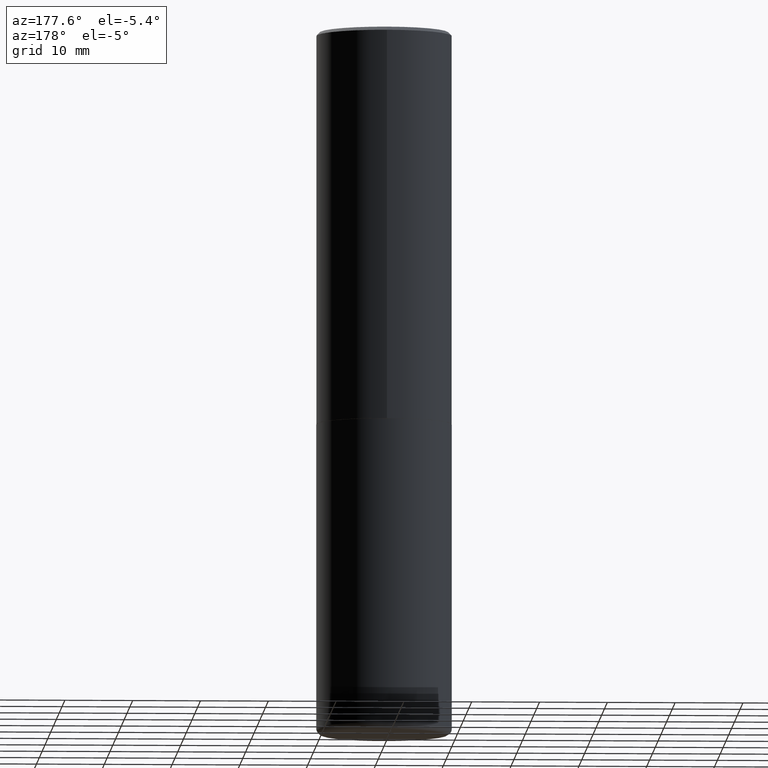
[diagram: clean part render]
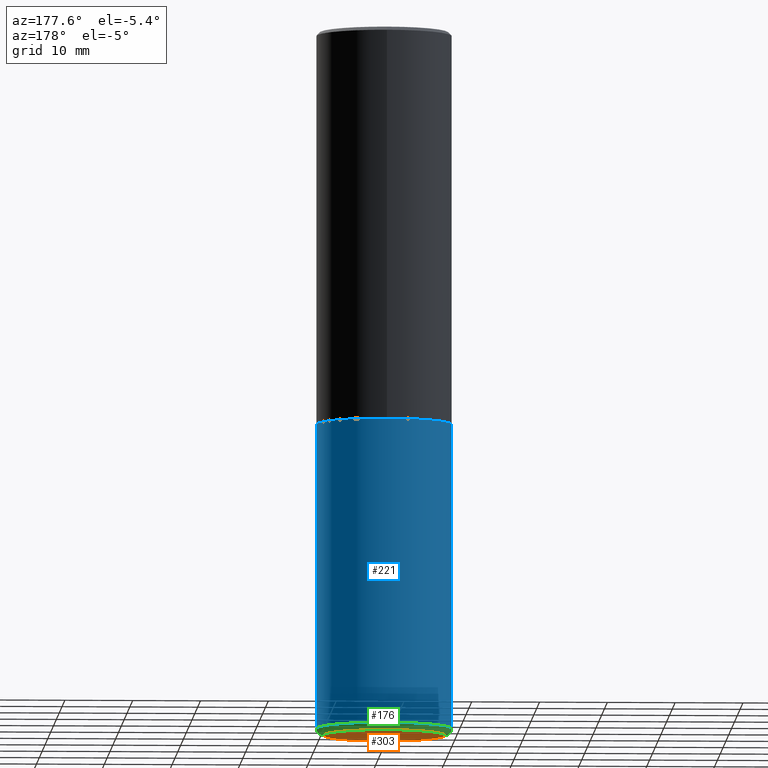
[diagram: same view with three faces highlighted in distinct colors, each labeled with its STEP entity id]
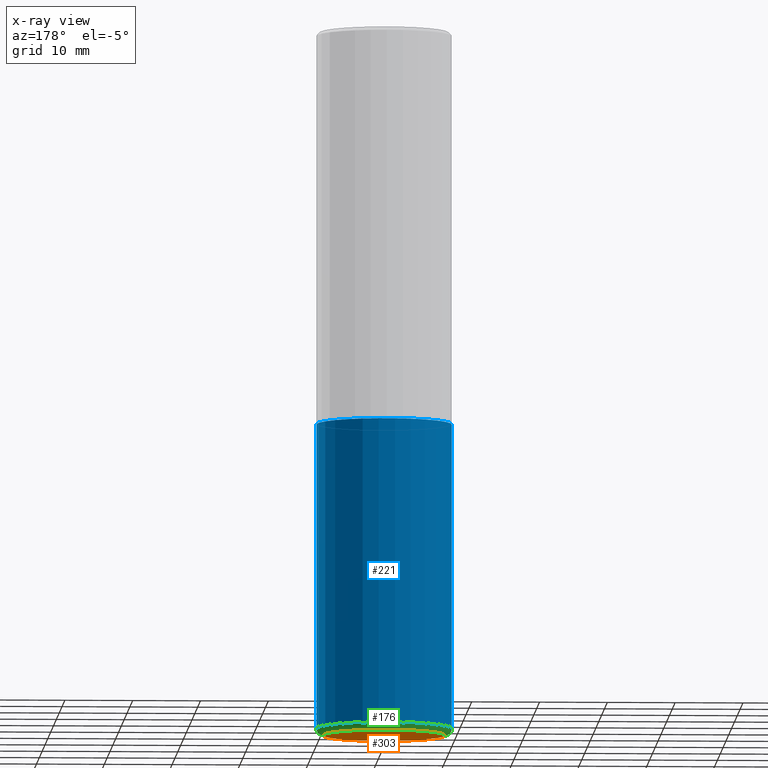
[diagram: x-ray of the same camera — body ghosted, the three highlighted faces saturated]
A machine part, auxiliary view with three faces highlighted in distinct colors.
The next image is the same camera in x-ray (body ghosted, the three faces saturated) — at least one of them is partly hidden behind the body in this view.
Their STEP definitions:

[orange] entity #303 — the highlighted planar face has unit normal (0, -0, -1).
#25 = EDGE_LOOP ( 'NONE', ( #255, #166 ) ) ;
#48 = DIRECTION ( 'NONE',  ( 2.438088387897960049E-29, -3.491481338843145188E-15, -1.000000000000000000 ) ) ;
#55 = VERTEX_POINT ( 'NONE', #204 ) ;
#84 = DIRECTION ( 'NONE',  ( -2.445468806185136597E-29, 3.491481338843145583E-15, 1.000000000000000000 ) ) ;
#100 = EDGE_CURVE ( 'NONE', #55, #123, #128, .T. ) ;
#108 = AXIS2_PLACEMENT_3D ( 'NONE', #403, #48, #222 ) ;
#110 = EDGE_CURVE ( 'NONE', #123, #55, #291, .T. ) ;
#114 = DIRECTION ( 'NONE',  ( -2.445468806185136597E-29, 3.491481338843145583E-15, 1.000000000000000000 ) ) ;
#123 = VERTEX_POINT ( 'NONE', #242 ) ;
#128 = CIRCLE ( 'NONE', #326, 0.3543000000000001148 ) ;
#166 = ORIENTED_EDGE ( 'NONE', *, *, #100, .F. ) ;
#204 = CARTESIAN_POINT ( 'NONE',  ( -0.3543000000000001148, -1.156965832777527483E-14, -4.094500000000000028 ) ) ;
#210 = CARTESIAN_POINT ( 'NONE',  ( 1.001297202692504215E-28, -1.429587034189326149E-14, -4.094500000000000028 ) ) ;
#216 = DIRECTION ( 'NONE',  ( 1.000000000000000000, -6.982962677686264344E-15, 0.000000000000000000 ) ) ;
#222 = DIRECTION ( 'NONE',  ( -1.000000000000000000, 6.982962677686265922E-15, -4.876176775795935793E-29 ) ) ;
#242 = CARTESIAN_POINT ( 'NONE',  ( 0.3543000000000001148, -1.676993401859750628E-14, -4.094500000000000028 ) ) ;
#245 = DIRECTION ( 'NONE',  ( 1.000000000000000000, -6.982962677686264344E-15, 0.000000000000000000 ) ) ;
#255 = ORIENTED_EDGE ( 'NONE', *, *, #110, .F. ) ;
#289 = FACE_OUTER_BOUND ( 'NONE', #25, .T. ) ;
#291 = CIRCLE ( 'NONE', #332, 0.3543000000000001148 ) ;
#303 = ADVANCED_FACE ( 'NONE', ( #289 ), #335, .T. ) ;
#326 = AXIS2_PLACEMENT_3D ( 'NONE', #414, #84, #216 ) ;
#332 = AXIS2_PLACEMENT_3D ( 'NONE', #210, #114, #245 ) ;
#335 = PLANE ( 'NONE',  #108 ) ;
#403 = CARTESIAN_POINT ( 'NONE',  ( 1.001297202692504215E-28, -1.429587034189326149E-14, -4.094500000000000028 ) ) ;
#414 = CARTESIAN_POINT ( 'NONE',  ( 1.001297202692504215E-28, -1.429587034189326149E-14, -4.094500000000000028 ) ) ;

[blue] entity #221 — the highlighted cylindrical surface (partial cylindrical patch) has radius 10 mm, axis along (-0, 0, 1).
#7 = AXIS2_PLACEMENT_3D ( 'NONE', #329, #40, #241 ) ;
#40 = DIRECTION ( 'NONE',  ( -2.445468806185136597E-29, 3.491481338843145583E-15, 1.000000000000000000 ) ) ;
#43 = CARTESIAN_POINT ( 'NONE',  ( -0.3937000000000001054, -1.136089922645532513E-14, -4.055100000000000371 ) ) ;
#77 = CYLINDRICAL_SURFACE ( 'NONE', #7, 0.3937000000000000499 ) ;
#79 = VECTOR ( 'NONE', #334, 39.37007874015748143 ) ;
#127 = ORIENTED_EDGE ( 'NONE', *, *, #234, .F. ) ;
#129 = AXIS2_PLACEMENT_3D ( 'NONE', #173, #363, #368 ) ;
#135 = VECTOR ( 'NONE', #142, 39.37007874015748143 ) ;
#140 = ORIENTED_EDGE ( 'NONE', *, *, #254, .T. ) ;
#142 = DIRECTION ( 'NONE',  ( -2.445468806185136877E-29, 3.491481338843145188E-15, 1.000000000000000000 ) ) ;
#145 = LINE ( 'NONE', #179, #79 ) ;
#151 = EDGE_CURVE ( 'NONE', #185, #375, #145, .T. ) ;
#154 = ORIENTED_EDGE ( 'NONE', *, *, #209, .F. ) ;
#160 = ORIENTED_EDGE ( 'NONE', *, *, #151, .T. ) ;
#173 = CARTESIAN_POINT ( 'NONE',  ( 9.916620555961347550E-29, -1.415830597714284070E-14, -4.055100000000000371 ) ) ;
#175 = CARTESIAN_POINT ( 'NONE',  ( 0.3937000000000001054, -1.690749838334792550E-14, -4.055100000000000371 ) ) ;
#179 = CARTESIAN_POINT ( 'NONE',  ( -0.3937000000000000499, 2.797406750687514786E-15, -1.936584745033356735E-29 ) ) ;
#185 = VERTEX_POINT ( 'NONE', #43 ) ;
#194 = VERTEX_POINT ( 'NONE', #175 ) ;
#202 = EDGE_LOOP ( 'NONE', ( #140, #160, #127, #154 ) ) ;
#207 = LINE ( 'NONE', #364, #135 ) ;
#209 = EDGE_CURVE ( 'NONE', #194, #266, #207, .T. ) ;
#221 = ADVANCED_FACE ( 'NONE', ( #361 ), #77, .T. ) ;
#234 = EDGE_CURVE ( 'NONE', #266, #375, #305, .T. ) ;
#241 = DIRECTION ( 'NONE',  ( 1.000000000000000000, -6.982962677686265922E-15, 4.876176775795935793E-29 ) ) ;
#254 = EDGE_CURVE ( 'NONE', #194, #185, #387, .T. ) ;
#266 = VERTEX_POINT ( 'NONE', #285 ) ;
#273 = CARTESIAN_POINT ( 'NONE',  ( 5.584228018923760468E-29, -7.972797637248324710E-15, -2.283500000000000529 ) ) ;
#274 = DIRECTION ( 'NONE',  ( -2.445468806185136597E-29, 3.491481338843145583E-15, 1.000000000000000000 ) ) ;
#285 = CARTESIAN_POINT ( 'NONE',  ( 0.3937000000000000499, -1.072199004345340635E-14, -2.283500000000000529 ) ) ;
#305 = CIRCLE ( 'NONE', #365, 0.3937000000000000499 ) ;
#307 = DIRECTION ( 'NONE',  ( 1.000000000000000000, -6.982962677686265133E-15, 0.000000000000000000 ) ) ;
#329 = CARTESIAN_POINT ( 'NONE',  ( 0.000000000000000000, 0.000000000000000000, 0.000000000000000000 ) ) ;
#334 = DIRECTION ( 'NONE',  ( -2.445468806185136877E-29, 3.491481338843145188E-15, 1.000000000000000000 ) ) ;
#345 = CARTESIAN_POINT ( 'NONE',  ( -0.3937000000000000499, -8.268145056508067919E-15, -2.283500000000000529 ) ) ;
#361 = FACE_OUTER_BOUND ( 'NONE', #202, .T. ) ;
#363 = DIRECTION ( 'NONE',  ( -2.445468806185136597E-29, 3.491481338843145583E-15, 1.000000000000000000 ) ) ;
#364 = CARTESIAN_POINT ( 'NONE',  ( 0.3937000000000000499, -2.749192406205083217E-15, 1.919750796630860172E-29 ) ) ;
#365 = AXIS2_PLACEMENT_3D ( 'NONE', #273, #274, #307 ) ;
#368 = DIRECTION ( 'NONE',  ( 1.000000000000000000, -6.982962677686267499E-15, 0.000000000000000000 ) ) ;
#375 = VERTEX_POINT ( 'NONE', #345 ) ;
#387 = CIRCLE ( 'NONE', #129, 0.3937000000000000499 ) ;

[green] entity #176 — the highlighted toroidal blend (fillet) surface has major radius 8.9992 mm and minor (blend) radius 1.0008 mm.
#31 = ORIENTED_EDGE ( 'NONE', *, *, #405, .F. ) ;
#32 = EDGE_LOOP ( 'NONE', ( #53, #378, #290, #31 ) ) ;
#43 = CARTESIAN_POINT ( 'NONE',  ( -0.3937000000000001054, -1.136089922645532513E-14, -4.055100000000000371 ) ) ;
#53 = ORIENTED_EDGE ( 'NONE', *, *, #110, .T. ) ;
#55 = VERTEX_POINT ( 'NONE', #204 ) ;
#78 = CARTESIAN_POINT ( 'NONE',  ( -0.3543000000000000038, -1.164085306434480532E-14, -4.055100000000000371 ) ) ;
#85 = DIRECTION ( 'NONE',  ( -6.982962677686266711E-15, -1.000000000000000000, 3.491481338843145583E-15 ) ) ;
#96 = AXIS2_PLACEMENT_3D ( 'NONE', #409, #85, #256 ) ;
#109 = DIRECTION ( 'NONE',  ( -2.445468806185136597E-29, 3.491481338843145583E-15, 1.000000000000000000 ) ) ;
#110 = EDGE_CURVE ( 'NONE', #123, #55, #291, .T. ) ;
#114 = DIRECTION ( 'NONE',  ( -2.445468806185136597E-29, 3.491481338843145583E-15, 1.000000000000000000 ) ) ;
#116 = FACE_OUTER_BOUND ( 'NONE', #32, .T. ) ;
#121 = EDGE_CURVE ( 'NONE', #55, #185, #359, .T. ) ;
#123 = VERTEX_POINT ( 'NONE', #242 ) ;
#129 = AXIS2_PLACEMENT_3D ( 'NONE', #173, #363, #368 ) ;
#162 = AXIS2_PLACEMENT_3D ( 'NONE', #309, #109, #331 ) ;
#173 = CARTESIAN_POINT ( 'NONE',  ( 9.916620555961347550E-29, -1.415830597714284070E-14, -4.055100000000000371 ) ) ;
#175 = CARTESIAN_POINT ( 'NONE',  ( 0.3937000000000001054, -1.690749838334792550E-14, -4.055100000000000371 ) ) ;
#176 = ADVANCED_FACE ( 'NONE', ( #116 ), #385, .T. ) ;
#185 = VERTEX_POINT ( 'NONE', #43 ) ;
#191 = CIRCLE ( 'NONE', #96, 0.03940000000000005997 ) ;
#194 = VERTEX_POINT ( 'NONE', #175 ) ;
#204 = CARTESIAN_POINT ( 'NONE',  ( -0.3543000000000001148, -1.156965832777527483E-14, -4.094500000000000028 ) ) ;
#210 = CARTESIAN_POINT ( 'NONE',  ( 1.001297202692504215E-28, -1.429587034189326149E-14, -4.094500000000000028 ) ) ;
#211 = DIRECTION ( 'NONE',  ( 7.105427357601001859E-15, 1.000000000000000000, -3.491481338843145583E-15 ) ) ;
#242 = CARTESIAN_POINT ( 'NONE',  ( 0.3543000000000001148, -1.676993401859750628E-14, -4.094500000000000028 ) ) ;
#245 = DIRECTION ( 'NONE',  ( 1.000000000000000000, -6.982962677686264344E-15, 0.000000000000000000 ) ) ;
#254 = EDGE_CURVE ( 'NONE', #194, #185, #387, .T. ) ;
#256 = DIRECTION ( 'NONE',  ( 1.000000000000000000, -6.982962677686267499E-15, 0.000000000000000000 ) ) ;
#290 = ORIENTED_EDGE ( 'NONE', *, *, #254, .F. ) ;
#291 = CIRCLE ( 'NONE', #332, 0.3543000000000001148 ) ;
#309 = CARTESIAN_POINT ( 'NONE',  ( 9.916620555961347550E-29, -1.415830597714284070E-14, -4.055100000000000371 ) ) ;
#331 = DIRECTION ( 'NONE',  ( 1.000000000000000000, -6.982962677686266711E-15, 4.883557194083112340E-29 ) ) ;
#332 = AXIS2_PLACEMENT_3D ( 'NONE', #210, #114, #245 ) ;
#359 = CIRCLE ( 'NONE', #392, 0.03940000000000005997 ) ;
#363 = DIRECTION ( 'NONE',  ( -2.445468806185136597E-29, 3.491481338843145583E-15, 1.000000000000000000 ) ) ;
#368 = DIRECTION ( 'NONE',  ( 1.000000000000000000, -6.982962677686267499E-15, 0.000000000000000000 ) ) ;
#378 = ORIENTED_EDGE ( 'NONE', *, *, #121, .T. ) ;
#385 = TOROIDAL_SURFACE ( 'NONE', #162, 0.3543000000000000038, 0.03940000000000005997 ) ;
#387 = CIRCLE ( 'NONE', #129, 0.3937000000000000499 ) ;
#392 = AXIS2_PLACEMENT_3D ( 'NONE', #78, #211, #393 ) ;
#393 = DIRECTION ( 'NONE',  ( -1.000000000000000000, 7.105427357601014480E-15, 0.000000000000000000 ) ) ;
#405 = EDGE_CURVE ( 'NONE', #123, #194, #191, .T. ) ;
#409 = CARTESIAN_POINT ( 'NONE',  ( 0.3543000000000000038, -1.663236965384708391E-14, -4.055100000000000371 ) ) ;